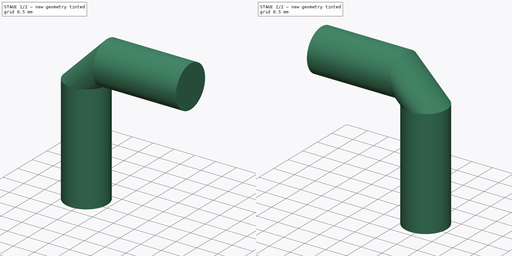
[diagram: build sequence overview — one tinted view per stage of 2, left to right]
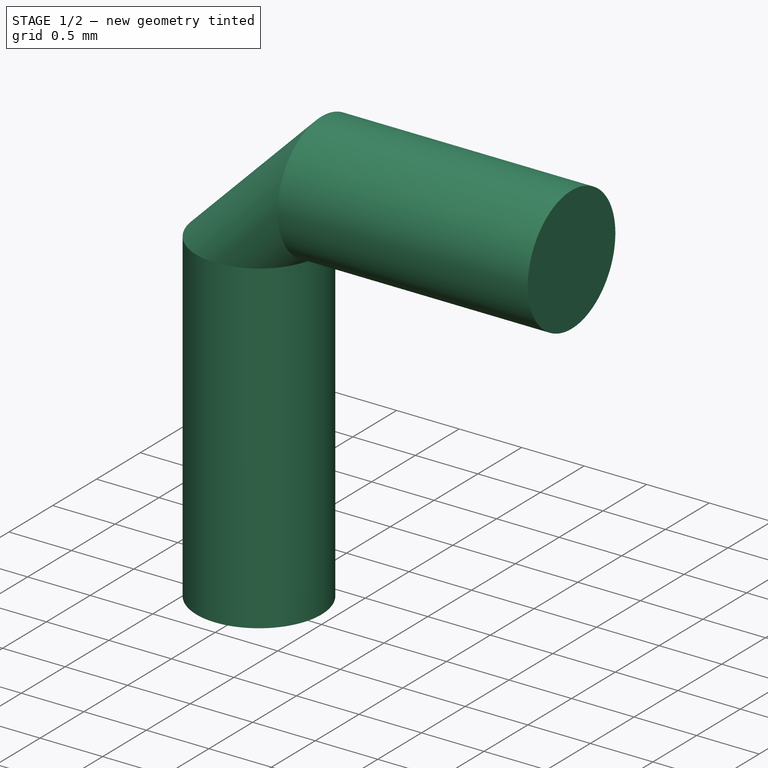
[diagram: stage 1 of 2 — iso view after this stage's code; geometry added in this stage tinted green]
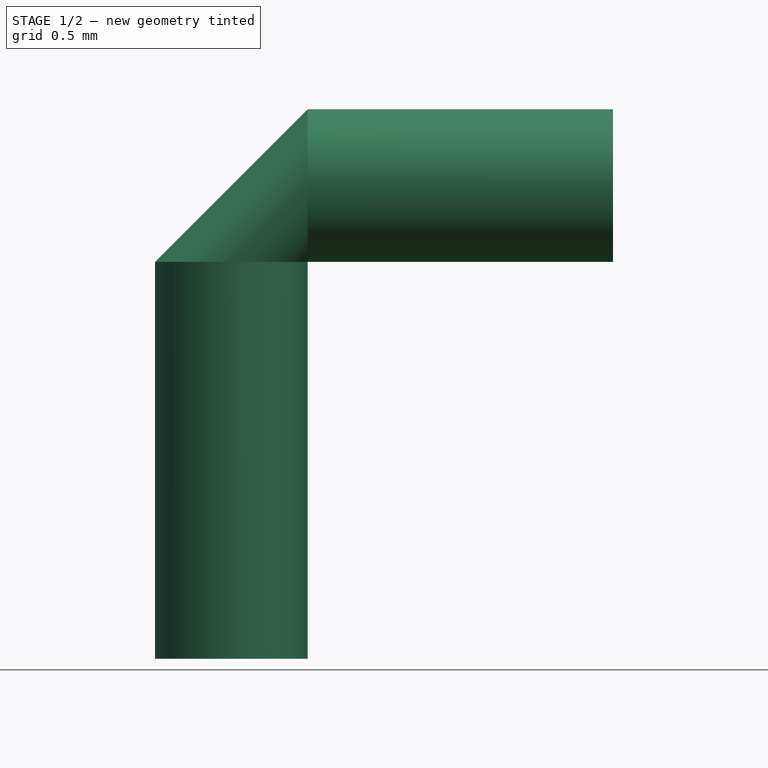
[diagram: stage 1 of 2 — front view after this stage's code; geometry added in this stage tinted green]
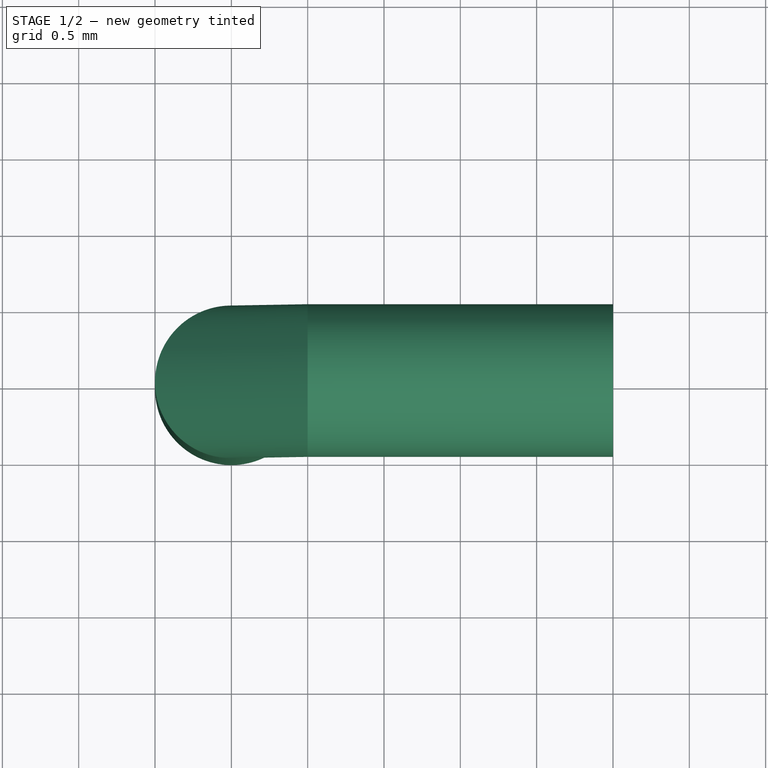
[diagram: stage 1 of 2 — top view after this stage's code; geometry added in this stage tinted green]
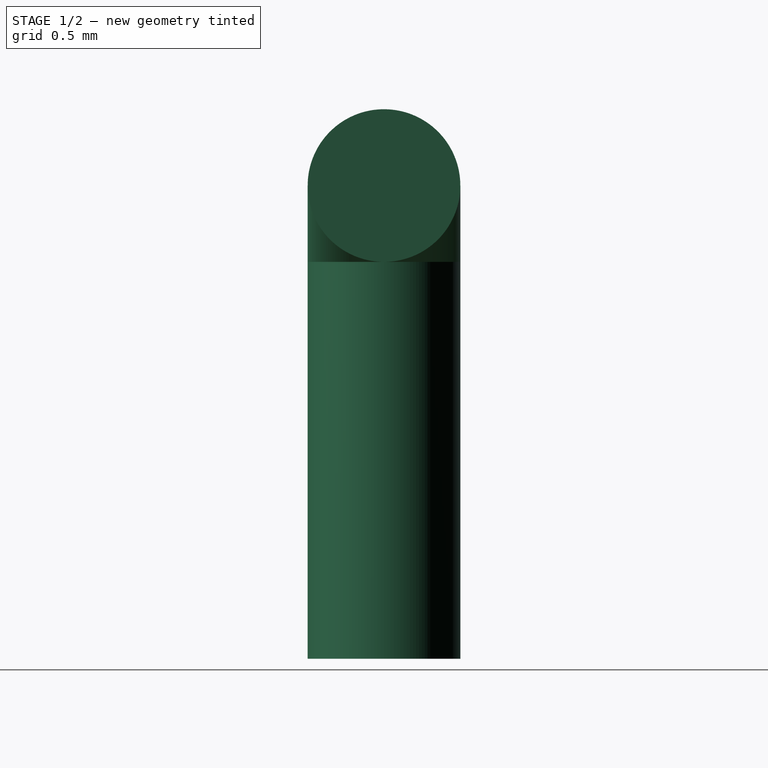
[diagram: stage 1 of 2 — right view after this stage's code; geometry added in this stage tinted green]
FCSTD DOCUMENT  (FreeCAD 0.18R4 (GitTag))
Label: jumper
License: All rights reserved
LicenseURL: http://en.wikipedia.org/wiki/All_rights_reserved
objects: Sketcher::SketchObject×2, Part::Sweep×1, Spreadsheet::Sheet×1, Part::Mirroring×1
note: 4 computed .brp shape members not serialized (recipe doc carries the construction recipe); baked Part::Feature solids carry a one-line shape summary decoded from their .brp

FEATURE [Sketcher::SketchObject] Sketch
  expr: Constraints[2] = Spreadsheet.D3
  expr: Constraints[0] = Spreadsheet.B2
  sketch-geometry (1):
    g0: Circle CenterX=-2.5 CenterY=0 CenterZ=0 NormalX=0 NormalY=0 NormalZ=1 AngleXU=0 Radius=0.5
  constraints (3):
    c: Radius(g0) = 0.5
    c: PointOnObject(g0,g-1)
    c: DistanceX(g0,g-1) = 2.5
FEATURE [Sketcher::SketchObject] Sketch001
  MapMode = 3
  Placement = pos=(0,0,0) rot=(1,0,0;1.5708rad)
  Support = -> [Sketch]
  expr: Constraints[6] = Spreadsheet.D3
  expr: Constraints[8] = Spreadsheet.B2
  expr: Constraints[5] = Spreadsheet.B4
  sketch-geometry (3):
    g0: LineSegment StartX=-2.5 StartY=-2.1 StartZ=0 EndX=-2.5 EndY=0.5 EndZ=0
    g1: LineSegment StartX=-2 StartY=1 StartZ=0 EndX=0 EndY=1 EndZ=0
    g2: ArcOfCircle CenterX=-2 CenterY=0.5 CenterZ=0 NormalX=0 NormalY=0 NormalZ=1 AngleXU=0 Radius=0.5 StartAngle=1.5708 EndAngle=3.14159
  constraints (9):
    c: Vertical(g0)
    c: PointOnObject(g1,g-2)
    c: Horizontal(g1)
    c: Tangent(g1,g2) = 1.5708
    c: Tangent(g0,g2) = 1.5708
    c: DistanceY(g1) = 1
    c: DistanceX(g0,g-1) = 2.5
    c: DistanceY(g0,g-1) = 2.1
    c: Radius(g2) = 0.5
FEATURE [Part::Sweep] Sweep
  Frenet = false
  Sections = -> [Sketch]
  Solid = true
  Spine = -> Sketch001 [Edge1,Edge2,Edge3]
  Transition = 1
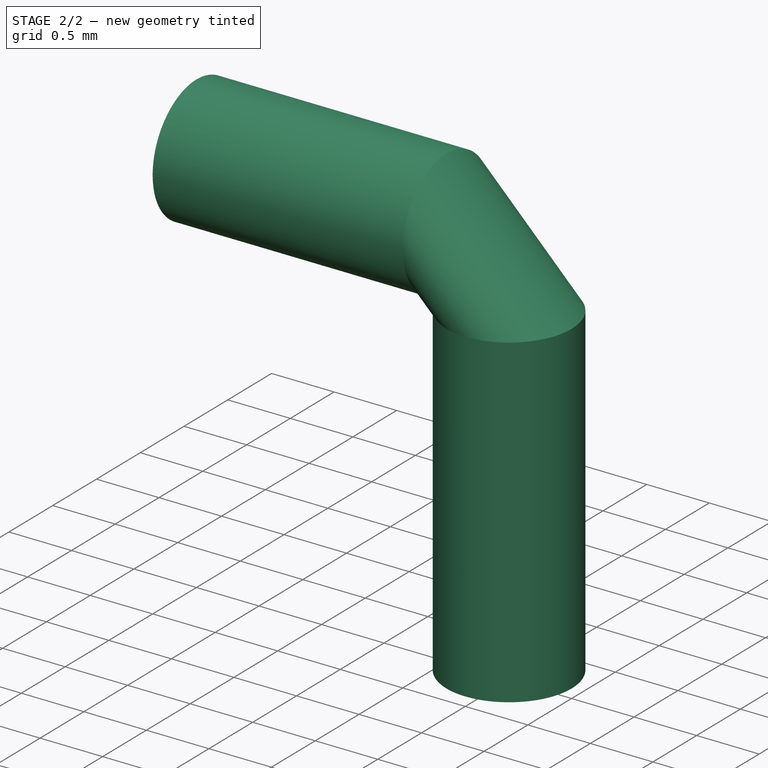
[diagram: stage 2 of 2 — iso view after this stage's code; geometry added in this stage tinted green]
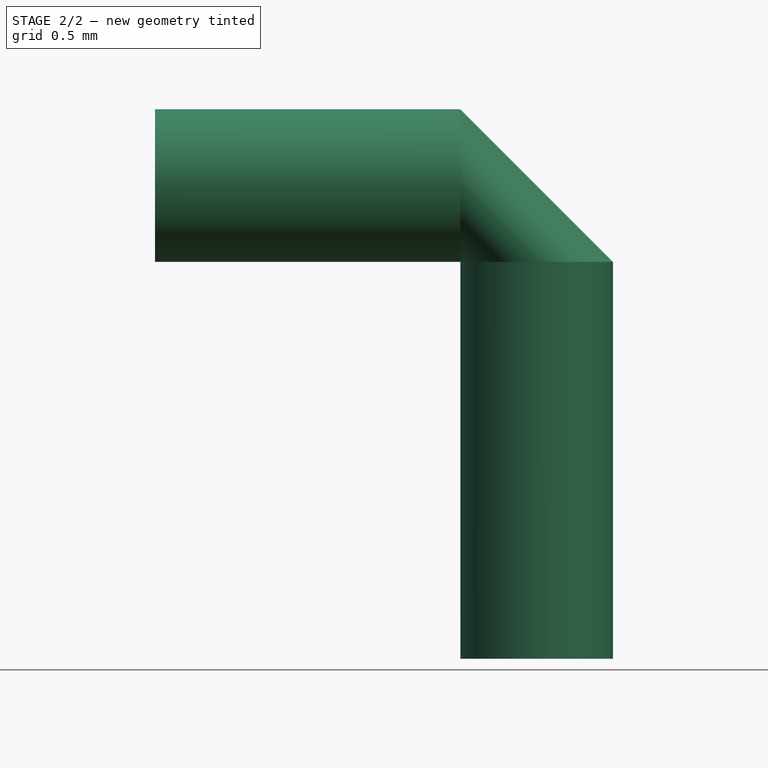
[diagram: stage 2 of 2 — front view after this stage's code; geometry added in this stage tinted green]
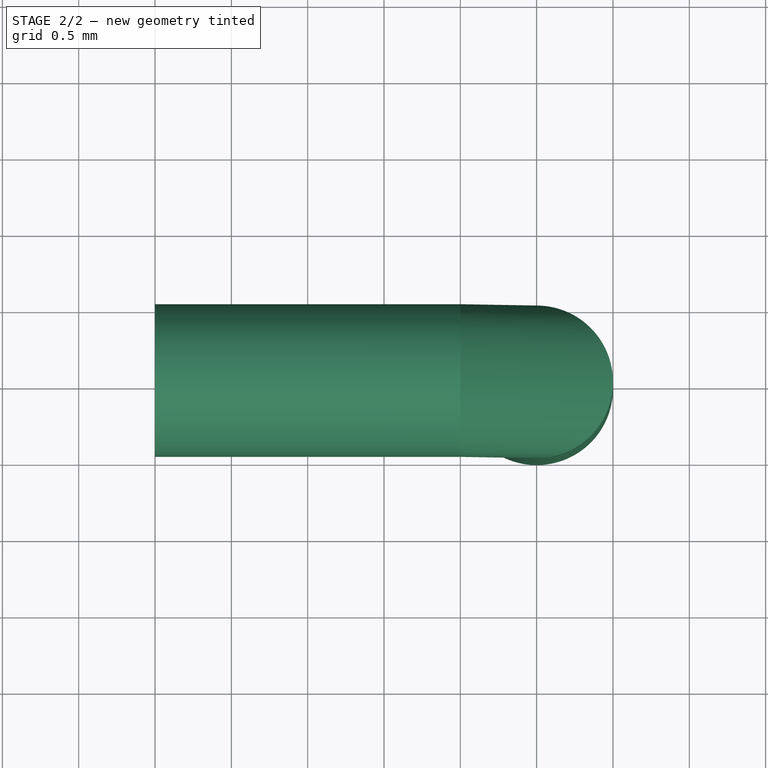
[diagram: stage 2 of 2 — top view after this stage's code; geometry added in this stage tinted green]
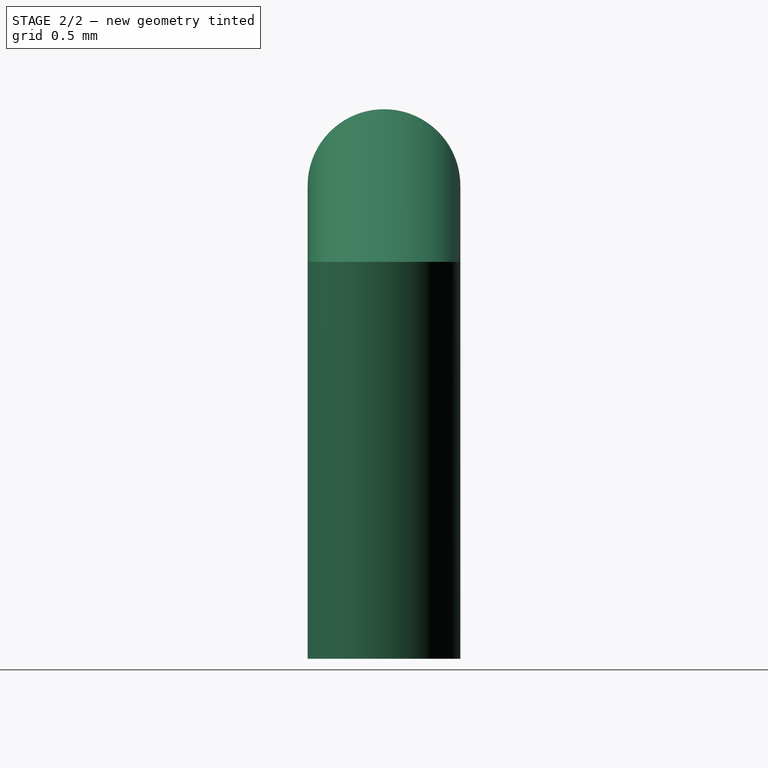
[diagram: stage 2 of 2 — right view after this stage's code; geometry added in this stage tinted green]
FEATURE [Spreadsheet::Sheet] Spreadsheet
  cells = A1=dimaeter; B1=1; C1=mm; A2=radius; B2==B1 / 2; C2=mm; A3=raster; B3=5; C3=mm; D3==B3 / 2; B4==0.5 + B2
FEATURE [Part::Mirroring] Part__Mirroring  label="Sweep (Mirror #1)"
  Base = (0,0,0)
  Normal = (1,0,0)
  Source = -> Sweep
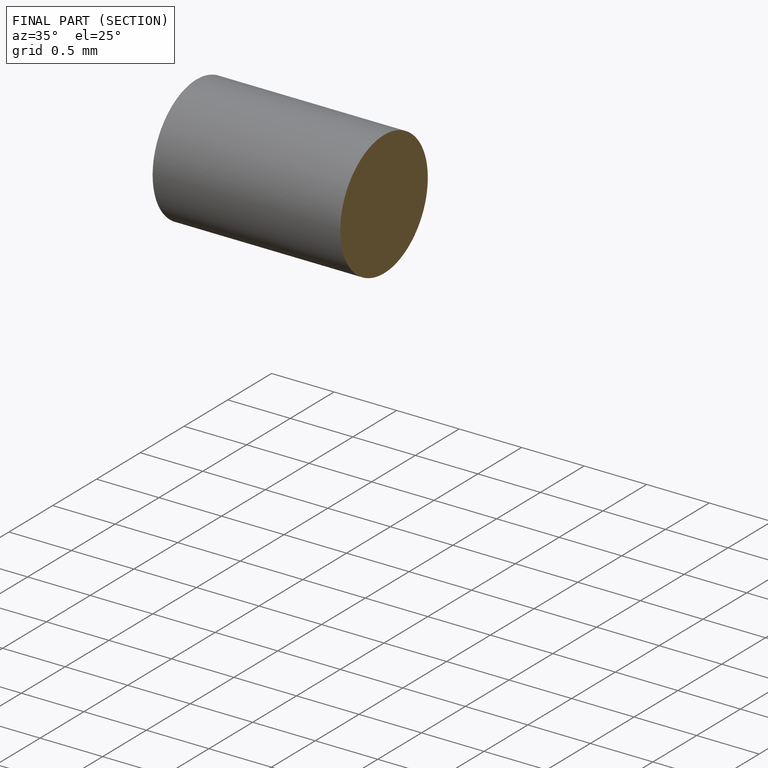
[diagram: finished part — half-section view (interior)]
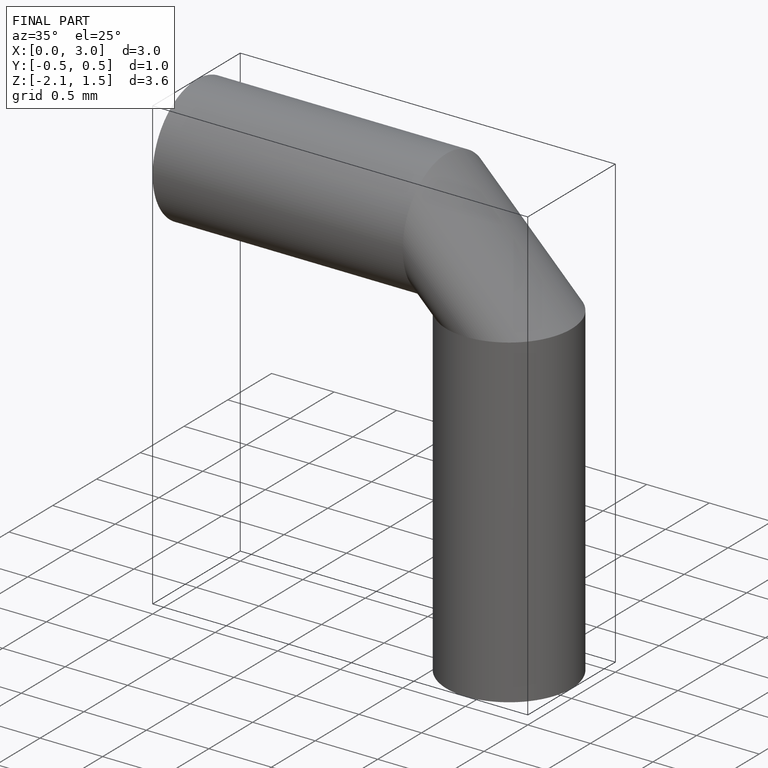
[diagram: finished part — iso view with bounding-box wireframe]
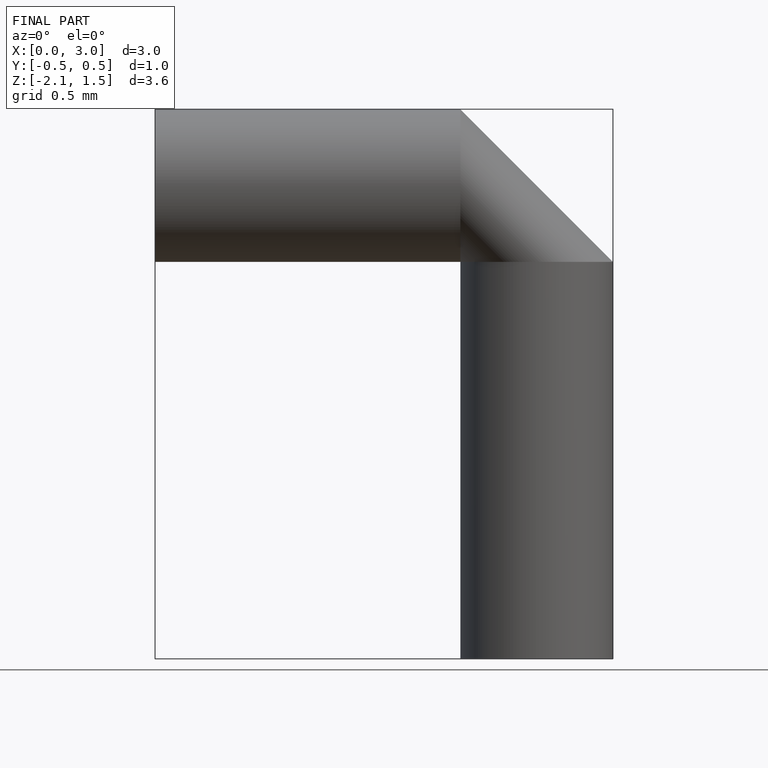
[diagram: finished part — front view with bounding-box wireframe]
